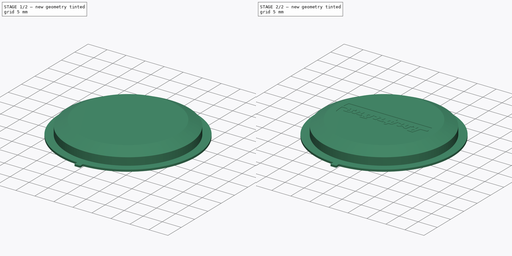
[diagram: build sequence overview — one tinted view per stage of 2, left to right]
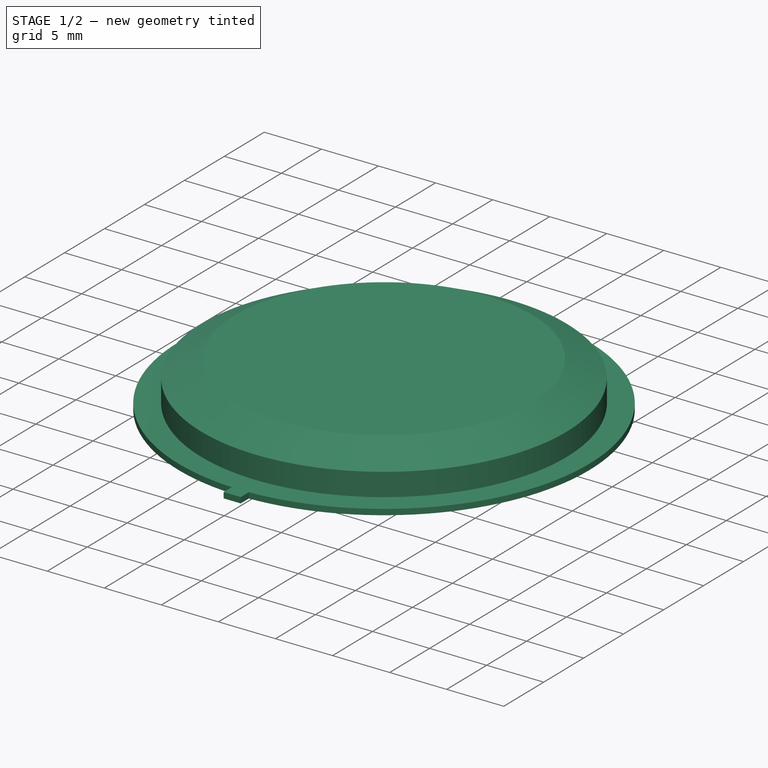
[diagram: stage 1 of 2 — iso view after this stage's code; geometry added in this stage tinted green]
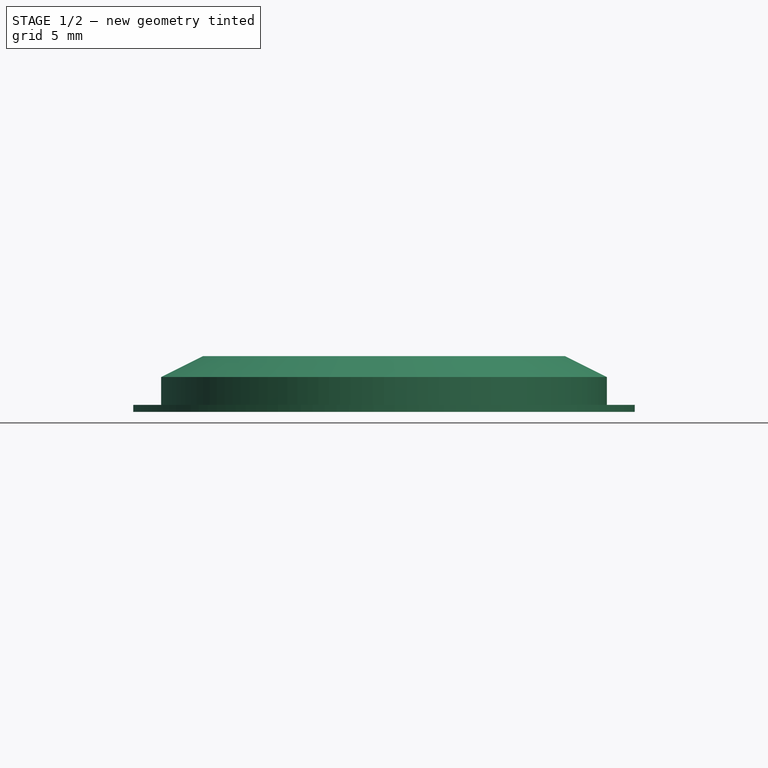
[diagram: stage 1 of 2 — front view after this stage's code; geometry added in this stage tinted green]
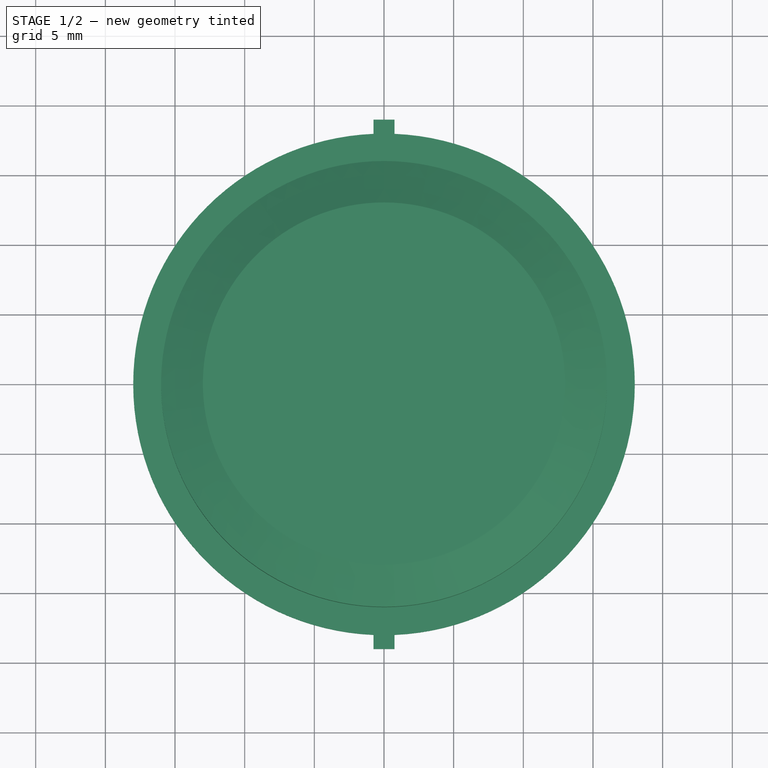
[diagram: stage 1 of 2 — top view after this stage's code; geometry added in this stage tinted green]
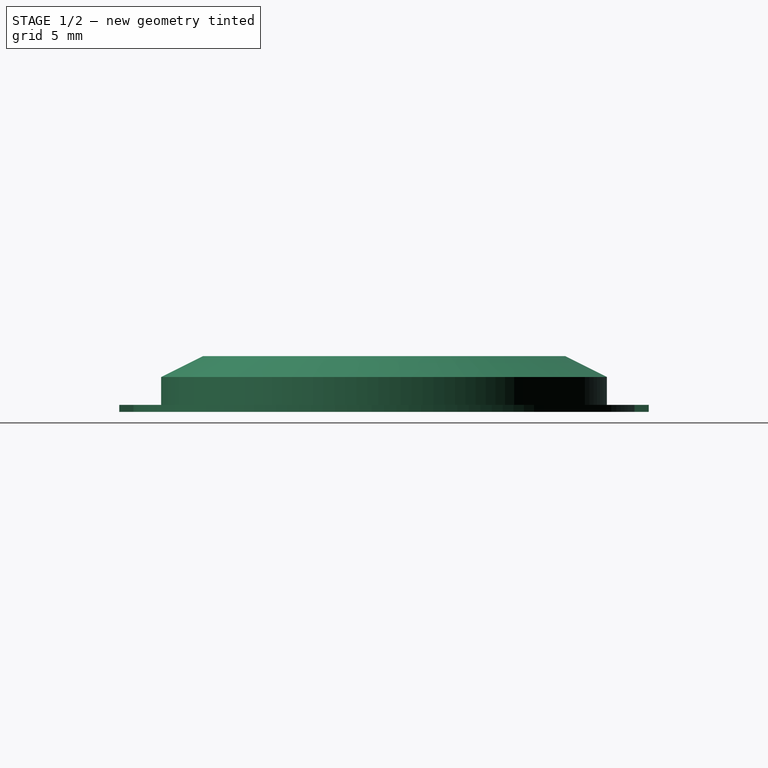
[diagram: stage 1 of 2 — right view after this stage's code; geometry added in this stage tinted green]
FCSTD DOCUMENT  (FreeCAD 0.19R20415 (Git))
Label: Vostok_Amphibia_Back
License: All rights reserved
LicenseURL: http://en.wikipedia.org/wiki/All_rights_reserved
objects: Sketcher::SketchObject×4, PartDesign::Pad×2, PartDesign::Revolution×1, Image::ImagePlane×1, PartDesign::Pocket×1, PartDesign::Body×1
note: 13 computed .brp shape members not serialized (recipe doc carries the construction recipe); baked Part::Feature solids carry a one-line shape summary decoded from their .brp

FEATURE [Sketcher::SketchObject] Sketch018
  MapMode = 5
  Placement = pos=(0,0,0) rot=(0.57735,0.57735,0.57735;2.0944rad)
  Support = -> [YZ_Plane002]
  sketch-geometry (10):
    g0: LineSegment StartX=0 StartY=3 StartZ=0 EndX=0 EndY=4 EndZ=0
    g1: LineSegment StartX=0 StartY=4 StartZ=0 EndX=13 EndY=4 EndZ=0
    g2: LineSegment StartX=13 StartY=4 StartZ=0 EndX=16 EndY=2.5 EndZ=0
    g3: LineSegment StartX=16 StartY=2.5 StartZ=0 EndX=16 EndY=0.5 EndZ=0
    g4: LineSegment StartX=16 StartY=0.5 StartZ=0 EndX=18 EndY=0.5 EndZ=0
    g5: LineSegment StartX=18 StartY=0.5 StartZ=0 EndX=18 EndY=0 EndZ=0
    g6: LineSegment StartX=18 StartY=0 StartZ=0 EndX=15 EndY=0 EndZ=0
    g7: LineSegment StartX=15 StartY=0 StartZ=0 EndX=15 EndY=2 EndZ=0
    g8: LineSegment StartX=15 StartY=2 StartZ=0 EndX=13 EndY=3 EndZ=0
    g9: LineSegment StartX=13 StartY=3 StartZ=0 EndX=0 EndY=3 EndZ=0
  constraints (30):
    c: PointOnObject(g0,g-2)
    c: Coincident(g0,g1)
    c: Horizontal(g1)
    c: Coincident(g1,g2)
    c: Coincident(g2,g3)
    c: Vertical(g3)
    c: Coincident(g3,g4)
    c: Horizontal(g4)
    c: Coincident(g4,g5)
    c: Coincident(g5,g6)
    c: Horizontal(g6)
    c: Coincident(g6,g7)
    c: Vertical(g7)
    c: Coincident(g7,g8)
    c: Coincident(g8,g9)
    c: Coincident(g9,g0)
    c: Horizontal(g9)
    c: Vertical(g5)
    c: Parallel(g8,g2)
    c: DistanceY(g5,g5) = 0.5
    c: DistanceY(g3,g3) = 2
    c: PointOnObject(g6,g-1)
    c: DistanceY(g1) = 4
    c: DistanceX(g2) = 16
    c: DistanceX(g1,g1) = 13
    c: Vertical(g0)
    c: DistanceY(g0,g0) = 1
    c: Vertical(g8,g1)
    c: DistanceX(g7,g3) = 1
    c: DistanceX(g4) = 18
FEATURE [PartDesign::Revolution] Revolution002
  AllowMultiFace = false
  Angle = 360
  Axis = (-2e-16,3e-16,1)
  Base = (0,0,0)
  Placement = pos=(0,0,0) rot=(0.57735,0.57735,0.57735;2.0944rad)
  Profile = -> Sketch018
  ReferenceAxis = -> Sketch018 [V_Axis]
  Reversed = true
FEATURE [Sketcher::SketchObject] Sketch019
  MapMode = 5
  Support = -> [XY_Plane002]
  sketch-geometry (8):
    g0: LineSegment StartX=-0.75 StartY=17.75 StartZ=0 EndX=0.75 EndY=17.75 EndZ=0
    g1: LineSegment StartX=0.75 StartY=17.75 StartZ=0 EndX=0.75 EndY=19 EndZ=0
    g2: LineSegment StartX=0.75 StartY=19 StartZ=0 EndX=-0.75 EndY=19 EndZ=0
    g3: LineSegment StartX=-0.75 StartY=19 StartZ=0 EndX=-0.75 EndY=17.75 EndZ=0
    g4: LineSegment StartX=-0.75 StartY=-17.75 StartZ=0 EndX=0.75 EndY=-17.75 EndZ=0
    g5: LineSegment StartX=0.75 StartY=-17.75 StartZ=0 EndX=0.75 EndY=-19 EndZ=0
    g6: LineSegment StartX=0.75 StartY=-19 StartZ=0 EndX=-0.75 EndY=-19 EndZ=0
    g7: LineSegment StartX=-0.75 StartY=-19 StartZ=0 EndX=-0.75 EndY=-17.75 EndZ=0
  constraints (22):
    c: Coincident(g0,g1)
    c: Coincident(g1,g2)
    c: Coincident(g2,g3)
    c: Coincident(g3,g0)
    c: Horizontal(g0)
    c: Vertical(g1)
    c: Vertical(g3)
    c: Coincident(g4,g5)
    c: Coincident(g5,g6)
    c: Coincident(g6,g7)
    c: Coincident(g7,g4)
    c: Horizontal(g4)
    c: Horizontal(g6)
    c: Vertical(g5)
    c: Vertical(g7)
    c: DistanceX(g2,g2) = 1.5
    c: DistanceY(g1,g1) = 1.25
    c: Symmetric(g2,g1,g-2)
    c: Equal(g3,g7)
    c: Equal(g6,g2)
    c: DistanceY(g0) = 17.75
    c: Symmetric(g4,g0,g-1)
FEATURE [PartDesign::Pad] Pad002
  AllowMultiFace = false
  BaseFeature = -> Revolution002
  Length = 0.5
  Length2 = 100
  Placement = pos=(0,0,0) rot=(0.57735,0.57735,0.57735;2.0944rad)
  Profile = -> Sketch019
  Refine = true
  Type = 0
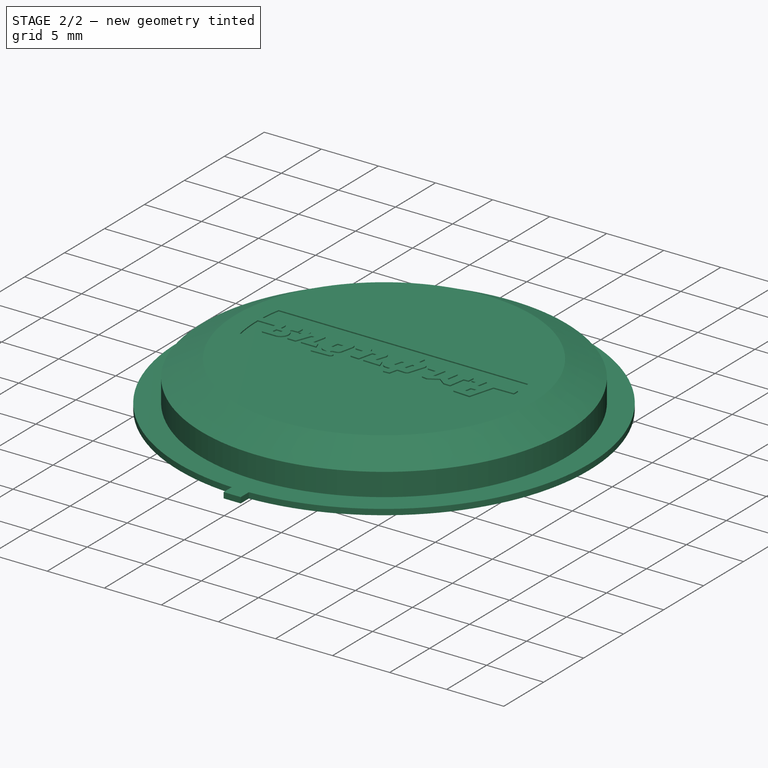
[diagram: stage 2 of 2 — iso view after this stage's code; geometry added in this stage tinted green]
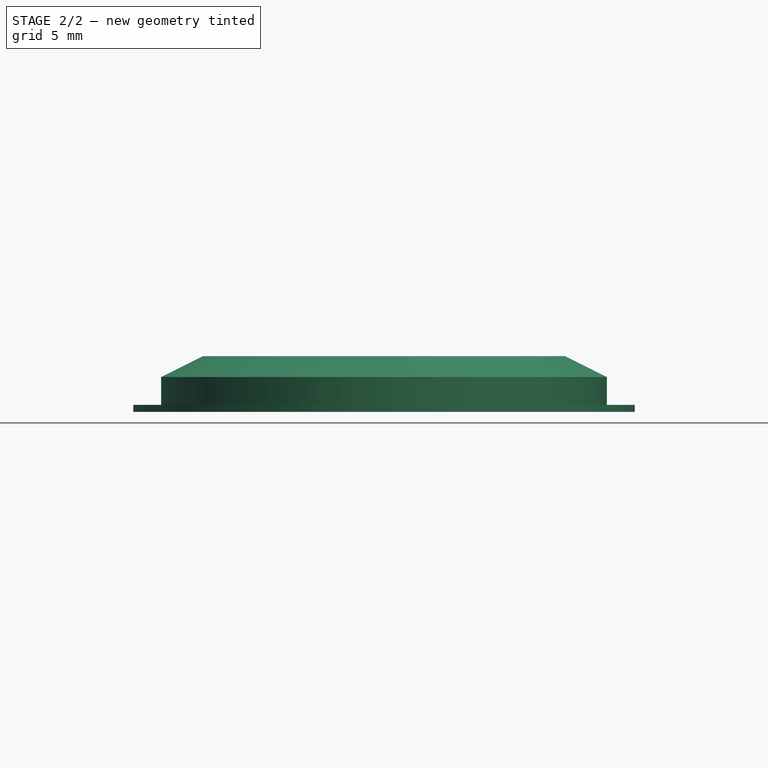
[diagram: stage 2 of 2 — front view after this stage's code; geometry added in this stage tinted green]
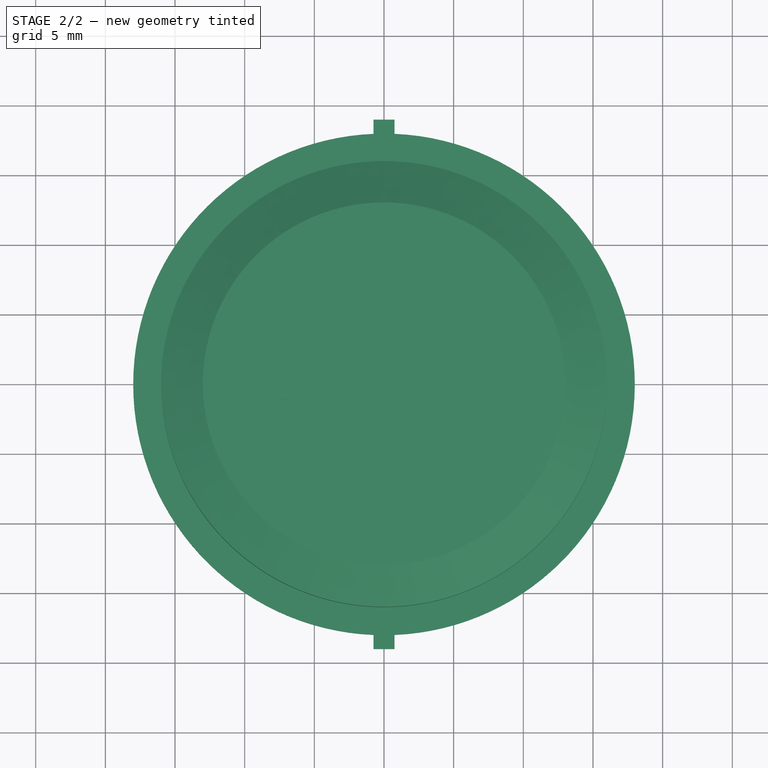
[diagram: stage 2 of 2 — top view after this stage's code; geometry added in this stage tinted green]
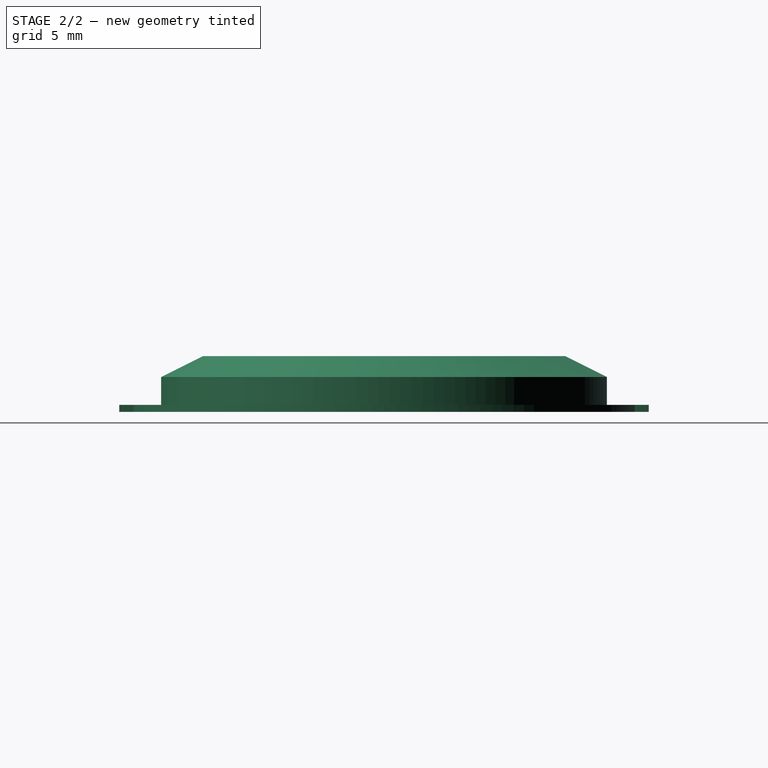
[diagram: stage 2 of 2 — right view after this stage's code; geometry added in this stage tinted green]
FEATURE [Image::ImagePlane] ImagePlane
  Placement = pos=(0,0,-4) rot=(-0.999391,0.034899,0;3.14159rad)
  XSize = 23.9034
  YSize = 6.97183
FEATURE [Sketcher::SketchObject] Sketch020
  MapMode = 5
  Placement = pos=(-1.8e-15,1.1e-15,4) rot=(0,0,-1;1.5708rad)
  Support = -> [Pad002]
  sketch-geometry (4):
    g0: LineSegment StartX=-2.43449 StartY=-10.9323 StartZ=0 EndX=-2.43449 EndY=10.9323 EndZ=0
    g1: LineSegment StartX=2.43449 StartY=-10.9323 StartZ=0 EndX=2.43449 EndY=10.9323 EndZ=0
    g2: ArcOfCircle CenterX=2.6e-15 CenterY=-2.66744 CenterZ=0 NormalX=0 NormalY=0 NormalZ=1 AngleXU=0 Radius=13.8159 StartAngle=1.39366 EndAngle=1.74793
    g3: ArcOfCircle CenterX=-2e-15 CenterY=1.2151 CenterZ=0 NormalX=0 NormalY=0 NormalZ=1 AngleXU=0 Radius=12.3889 StartAngle=4.5146 EndAngle=4.91018
  constraints (7):
    c: Coincident(g2,g0)
    c: Coincident(g2,g1)
    c: Coincident(g3,g0)
    c: Coincident(g3,g1)
    c: Symmetric(g1,g1,g-1)
    c: Symmetric(g0,g1,g-2)
    c: Symmetric(g0,g1,g-2)
FEATURE [PartDesign::Pocket] Pocket
  AllowMultiFace = false
  BaseFeature = -> Pad002
  Length = 0.1
  Length2 = 100
  Placement = pos=(0,0,0) rot=(0.57735,0.57735,0.57735;2.0944rad)
  Profile = -> Sketch020
  Type = 0
FEATURE [Sketcher::SketchObject] Sketch021
  MapMode = 5
  Placement = pos=(-1.7e-15,9e-16,3.9) rot=(0,0,-1;1.5708rad)
  Support = -> [Pocket]
  sketch-geometry (128):
    g0: LineSegment StartX=-1.05109 StartY=11.0024 StartZ=0 EndX=-0.972425 EndY=8.86941 EndZ=0
    g1: LineSegment StartX=-0.972425 StartY=8.86941 StartZ=0 EndX=-0.10063 EndY=8.66748 EndZ=0
    g2: LineSegment StartX=-0.10063 StartY=8.66748 StartZ=0 EndX=-0.120028 EndY=8.12436 EndZ=0
    g3: LineSegment StartX=-0.120028 StartY=8.12436 StartZ=0 EndX=-1.0127 EndY=8.30808 EndZ=0
    g4: LineSegment StartX=-1.0127 StartY=8.30808 StartZ=0 EndX=-1.0127 EndY=7.40667 EndZ=0
    g5: LineSegment StartX=-1.0127 StartY=7.40667 StartZ=0 EndX=-0.525367 EndY=7.29347 EndZ=0
    g6: LineSegment StartX=-0.525367 StartY=7.29347 StartZ=0 EndX=-0.530311 EndY=7.66981 EndZ=0
    g7: LineSegment StartX=-0.530311 StartY=7.66981 StartZ=0 EndX=1.57017 EndY=7.18173 EndZ=0
    g8: LineSegment StartX=1.57017 StartY=7.18173 StartZ=0 EndX=1.65732 EndY=8.64597 EndZ=0
    g9: LineSegment StartX=1.65732 StartY=8.64597 StartZ=0 EndX=-0.50107 EndY=9.24489 EndZ=0
    g10: LineSegment StartX=-0.50107 StartY=9.24489 StartZ=0 EndX=-0.538989 EndY=11.0024 EndZ=0
    g11: LineSegment StartX=0.481582 StartY=8.438 StartZ=0 EndX=0.513538 EndY=7.96665 EndZ=0
    g12: LineSegment StartX=0.513538 StartY=7.96665 StartZ=0 EndX=1.08875 EndY=7.86279 EndZ=0
    g13: LineSegment StartX=1.08875 StartY=7.86279 StartZ=0 EndX=1.06419 EndY=8.33585 EndZ=0
    g14: LineSegment StartX=1.06419 StartY=8.33585 StartZ=0 EndX=0.481582 EndY=8.438 EndZ=0
    g15: LineSegment StartX=-1.00457 StartY=7.15492 StartZ=0 EndX=-0.988205 EndY=6.24478 EndZ=0
    g16: LineSegment StartX=-0.988205 StartY=6.24478 StartZ=0 EndX=0.36954 EndY=6.02047 EndZ=0
    g17: LineSegment StartX=0.36954 StartY=6.02047 StartZ=0 EndX=0.144834 EndY=5.67826 EndZ=0
    g18: LineSegment StartX=0.144834 StartY=5.67826 StartZ=0 EndX=-0.85747 EndY=5.86129 EndZ=0
    g19: LineSegment StartX=-0.85747 StartY=5.86129 StartZ=0 EndX=-0.8847 EndY=5.33103 EndZ=0
    g20: LineSegment StartX=-0.8847 StartY=5.33103 StartZ=0 EndX=0.048961 EndY=5.17275 EndZ=0
    g21: LineSegment StartX=0.048961 StartY=5.17275 StartZ=0 EndX=0.353603 EndY=4.54011 EndZ=0
    g22: LineSegment StartX=0.353603 StartY=4.54011 StartZ=0 EndX=-0.840038 EndY=4.78926 EndZ=0
    g23: LineSegment StartX=-0.840038 StartY=4.78926 StartZ=0 EndX=-0.940623 EndY=3.31779 EndZ=0
    g24: LineSegment StartX=-0.940623 StartY=3.31779 StartZ=0 EndX=-0.456548 EndY=3.51677 EndZ=0
    g25: LineSegment StartX=-0.456548 StartY=3.51677 StartZ=0 EndX=-0.429325 EndY=4.22854 EndZ=0
    g26: LineSegment StartX=-0.429325 StartY=4.22854 StartZ=0 EndX=0.885667 EndY=3.94384 EndZ=0
    g27: LineSegment StartX=0.885667 StartY=3.94384 StartZ=0 EndX=0.952781 EndY=4.41228 EndZ=0
    g28: LineSegment StartX=0.952781 StartY=4.41228 StartZ=0 EndX=0.476029 EndY=5.25119 EndZ=0
    g29: LineSegment StartX=0.476029 StartY=5.25119 StartZ=0 EndX=0.944792 EndY=5.88227 EndZ=0
    g30: LineSegment StartX=0.944792 StartY=5.88227 StartZ=0 EndX=0.955392 EndY=6.46267 EndZ=0
    g31: LineSegment StartX=0.955392 StartY=6.46267 StartZ=0 EndX=-0.413346 EndY=6.69715 EndZ=0
    g32: LineSegment StartX=-0.413346 StartY=6.69715 StartZ=0 EndX=-0.439117 EndY=7.10763 EndZ=0
    g33: LineSegment StartX=-0.439117 StartY=7.10763 StartZ=0 EndX=-1.00457 EndY=7.15492 EndZ=0
    g34: LineSegment StartX=-1.59533 StartY=2.46341 StartZ=0 EndX=-1.66723 EndY=1.91217 EndZ=0
    g35: LineSegment StartX=-1.66723 StartY=1.91217 StartZ=0 EndX=-0.98497 EndY=1.7539 EndZ=0
    g36: LineSegment StartX=-0.98497 StartY=1.7539 StartZ=0 EndX=-0.996148 EndY=1.09729 EndZ=0
    g37: ArcOfCircle CenterX=-0.677645 CenterY=1.09187 CenterZ=0 NormalX=0 NormalY=0 NormalZ=1 AngleXU=0 Radius=0.318549 StartAngle=3.12457 EndAngle=4.6659
    g38: LineSegment StartX=-1.59533 StartY=2.46341 StartZ=0 EndX=-0.98581 EndY=2.38212 EndZ=0
    g39: LineSegment StartX=-0.98581 StartY=2.38212 StartZ=0 EndX=-0.976837 EndY=2.86063 EndZ=0
    g40: ArcOfCircle CenterX=-0.62013 CenterY=2.85394 CenterZ=0 NormalX=0 NormalY=0 NormalZ=1 AngleXU=0 Radius=0.35677 StartAngle=1.2565 EndAngle=3.12284
    g41: LineSegment StartX=-0.509837 StartY=3.19323 StartZ=0 EndX=0.801388 EndY=2.767 EndZ=0
    g42: ArcOfCircle CenterX=0.718111 CenterY=2.51081 CenterZ=0 NormalX=0 NormalY=0 NormalZ=1 AngleXU=0 Radius=0.26938 StartAngle=6.24926 EndAngle=7.53969
    g43: LineSegment StartX=0.987336 StartY=2.50168 StartZ=0 EndX=0.964921 EndY=1.84113 EndZ=0
    g44: LineSegment StartX=0.964921 StartY=1.84113 StartZ=0 EndX=1.69616 EndY=1.65652 EndZ=0
    g45: LineSegment StartX=1.69616 StartY=1.65652 StartZ=0 EndX=1.72812 EndY=1.12125 EndZ=0
    g46: LineSegment StartX=1.72812 StartY=1.12125 StartZ=0 EndX=1.03579 EndY=1.25781 EndZ=0
    g47: LineSegment StartX=1.03579 StartY=1.25781 StartZ=0 EndX=1.01749 EndY=0.836872 EndZ=0
    g48: ArcOfCircle CenterX=0.607464 CenterY=0.854702 CenterZ=0 NormalX=0 NormalY=0 NormalZ=1 AngleXU=0 Radius=0.410412 StartAngle=4.45408 EndAngle=6.23973
    g49: LineSegment StartX=0.502626 StartY=0.457906 StartZ=0 EndX=-0.692449 EndY=0.773661 EndZ=0
    g50: LineSegment StartX=-0.285122 StartY=2.47939 StartZ=0 EndX=-0.344921 EndY=2.25341 EndZ=0
    g51: LineSegment StartX=-0.344921 StartY=2.25341 StartZ=0 EndX=0.354001 EndY=2.05597 EndZ=0
    g52: LineSegment StartX=0.354001 StartY=2.05597 StartZ=0 EndX=0.39705 EndY=2.30015 EndZ=0
    g53: LineSegment StartX=0.39705 StartY=2.30015 StartZ=0 EndX=-0.285122 EndY=2.47939 EndZ=0
    g54: LineSegment StartX=-0.341045 StartY=1.54468 StartZ=0 EndX=-0.339079 EndY=1.3128 EndZ=0
    g55: LineSegment StartX=-0.339079 StartY=1.3128 StartZ=0 EndX=0.361991 EndY=1.12924 EndZ=0
    g56: LineSegment StartX=0.361991 StartY=1.12924 StartZ=0 EndX=0.393947 EndY=1.40087 EndZ=0
    g57: LineSegment StartX=0.393947 StartY=1.40087 StartZ=0 EndX=-0.341045 EndY=1.54468 EndZ=0
    g58: LineSegment StartX=-0.373136 StartY=-0.145754 StartZ=0 EndX=0.474852 EndY=-0.431454 EndZ=0
    g59: LineSegment StartX=0.474852 StartY=-0.431454 StartZ=0 EndX=0.466107 EndY=0.169897 EndZ=0
    g60: LineSegment StartX=0.466107 StartY=0.169897 StartZ=0 EndX=1.04891 EndY=0.365545 EndZ=0
    g61: LineSegment StartX=1.04891 StartY=0.365545 StartZ=0 EndX=1.00743 EndY=-1.11798 EndZ=0
    g62: LineSegment StartX=1.00743 StartY=-1.11798 StartZ=0 EndX=-0.293246 EndY=-0.872757 EndZ=0
    g63: LineSegment StartX=-0.293246 StartY=-0.872757 StartZ=0 EndX=-0.299928 EndY=-1.22257 EndZ=0
    g64: LineSegment StartX=-0.299928 StartY=-1.22257 StartZ=0 EndX=0.985002 EndY=-1.52786 EndZ=0
    g65: LineSegment StartX=0.985002 StartY=-1.52786 StartZ=0 EndX=0.945056 EndY=-2.27084 EndZ=0
    g66: LineSegment StartX=0.945056 StartY=-2.27084 StartZ=0 EndX=-0.256349 EndY=-2.02441 EndZ=0
    g67: LineSegment StartX=-0.256349 StartY=-2.02441 StartZ=0 EndX=-0.285257 EndY=-2.69426 EndZ=0
    g68: LineSegment StartX=-0.285257 StartY=-2.69426 StartZ=0 EndX=-0.876366 EndY=-2.94468 EndZ=0
    g69: LineSegment StartX=-0.876366 StartY=-2.94468 StartZ=0 EndX=-0.84449 EndY=-1.64769 EndZ=0
    g70: LineSegment StartX=-0.84449 StartY=-1.64769 StartZ=0 EndX=-0.482957 EndY=-1.51019 EndZ=0
    g71: LineSegment StartX=-0.482957 StartY=-1.51019 StartZ=0 EndX=-0.903417 EndY=-1.39217 EndZ=0
    g72: LineSegment StartX=-0.903417 StartY=-1.39217 StartZ=0 EndX=-0.873512 EndY=-0.459889 EndZ=0
    g73: ArcOfCircle CenterX=-0.517548 CenterY=-0.471308 CenterZ=0 NormalX=0 NormalY=0 NormalZ=1 AngleXU=0 Radius=0.356146 StartAngle=1.15329 EndAngle=3.10953
    g74: LineSegment StartX=-0.836017 StartY=-3.28291 StartZ=0 EndX=-0.876294 EndY=-4.15794 EndZ=0
    g75: ArcOfCircle CenterX=-0.396233 CenterY=-4.18003 CenterZ=0 NormalX=0 NormalY=0 NormalZ=1 AngleXU=0 Radius=0.480569 StartAngle=3.0956 EndAngle=4.53392
    g76: LineSegment StartX=-0.481546 StartY=-4.65297 StartZ=0 EndX=0.600982 EndY=-4.84825 EndZ=0
    g77: ArcOfCircle CenterX=0.695517 CenterY=-4.32419 CenterZ=0 NormalX=0 NormalY=0 NormalZ=1 AngleXU=0 Radius=0.532517 StartAngle=4.53392 EndAngle=6.01313
    g78: LineSegment StartX=-0.263959 StartY=-2.99421 StartZ=0 EndX=0.709587 EndY=-3.21573 EndZ=0
    g79: ArcOfCircle CenterX=0.631814 CenterY=-3.55753 CenterZ=0 NormalX=0 NormalY=0 NormalZ=1 AngleXU=0 Radius=0.350534 StartAngle=0.17182 EndAngle=1.34707
    g80: LineSegment StartX=0.977187 StartY=-3.4976 StartZ=0 EndX=1.02635 EndY=-3.7809 EndZ=0
    g81: ArcOfCircle CenterX=1.14722 CenterY=-3.75992 CenterZ=0 NormalX=0 NormalY=0 NormalZ=1 AngleXU=0 Radius=0.122677 StartAngle=3.31341 EndAngle=6.03351
    g82: LineSegment StartX=1.26609 StartY=-3.79024 StartZ=0 EndX=1.32563 EndY=-3.55675 EndZ=0
    g83: ArcOfCircle CenterX=1.53837 CenterY=-3.611 CenterZ=0 NormalX=0 NormalY=0 NormalZ=1 AngleXU=0 Radius=0.219545 StartAngle=0.0453612 EndAngle=2.89192
    g84: LineSegment StartX=1.75769 StartY=-3.60104 StartZ=0 EndX=1.82756 EndY=-5.14041 EndZ=0
    g85: LineSegment StartX=1.82756 StartY=-5.14041 StartZ=0 EndX=1.37768 EndY=-5.11414 EndZ=0
    g86: LineSegment StartX=1.37768 StartY=-5.11414 StartZ=0 EndX=1.3287 EndY=-4.03286 EndZ=0
    g87: LineSegment StartX=1.3287 StartY=-4.03286 StartZ=0 EndX=1.20873 EndY=-4.46626 EndZ=0
    g88: LineSegment StartX=-0.179772 StartY=-3.68732 StartZ=0 EndX=-0.189214 EndY=-4.18465 EndZ=0
    g89: LineSegment StartX=-0.189214 StartY=-4.18465 StartZ=0 EndX=0.456341 EndY=-4.28579 EndZ=0
    g90: LineSegment StartX=0.456341 StartY=-4.28579 StartZ=0 EndX=0.497845 EndY=-3.82515 EndZ=0
    g91: LineSegment StartX=0.497845 StartY=-3.82515 StartZ=0 EndX=-0.179772 EndY=-3.68732 EndZ=0
    g92: ArcOfCircle CenterX=-0.404687 CenterY=-3.42648 CenterZ=0 NormalX=0 NormalY=0 NormalZ=1 AngleXU=0 Radius=0.454596 StartAngle=1.25606 EndAngle=2.82028
    g93: LineSegment StartX=-0.468422 StartY=-5.55288 StartZ=0 EndX=0.594216 EndY=-5.78783 EndZ=0
    g94: LineSegment StartX=0.594216 StartY=-5.78783 StartZ=0 EndX=0.594216 EndY=-5.3551 EndZ=0
    g95: LineSegment StartX=0.594216 StartY=-5.3551 StartZ=0 EndX=1.08155 EndY=-5.18067 EndZ=0
    g96: LineSegment StartX=1.08155 StartY=-5.18067 StartZ=0 EndX=1.08155 EndY=-6.52283 EndZ=0
    g97: LineSegment StartX=1.08155 StartY=-6.52283 StartZ=0 EndX=-0.195384 EndY=-6.23538 EndZ=0
    g98: LineSegment StartX=-0.195384 StartY=-6.23538 StartZ=0 EndX=-0.195384 EndY=-6.48814 EndZ=0
    g99: LineSegment StartX=-0.195384 StartY=-6.48814 StartZ=0 EndX=1.10552 EndY=-6.9782 EndZ=0
    g100: LineSegment StartX=1.10552 StartY=-6.9782 StartZ=0 EndX=1.10552 EndY=-7.68923 EndZ=0
    g101: LineSegment StartX=1.10552 StartY=-7.68923 StartZ=0 EndX=-0.14309 EndY=-7.32484 EndZ=0
    g102: LineSegment StartX=-0.14309 StartY=-7.32484 StartZ=0 EndX=-0.169237 EndY=-7.59503 EndZ=0
    g103: LineSegment StartX=-0.169237 StartY=-7.59503 StartZ=0 EndX=-0.770619 EndY=-7.47301 EndZ=0
    g104: LineSegment StartX=-0.770619 StartY=-7.47301 StartZ=0 EndX=-0.652075 EndY=-6.85837 EndZ=0
    g105: LineSegment StartX=-0.652075 StartY=-6.85837 StartZ=0 EndX=-0.317403 EndY=-6.85837 EndZ=0
    g106: LineSegment StartX=-0.317403 StartY=-6.85837 StartZ=0 EndX=-0.787888 EndY=-6.65864 EndZ=0
    g107: LineSegment StartX=-0.787888 StartY=-6.65864 StartZ=0 EndX=-0.787888 EndY=-5.81401 EndZ=0
    g108: ArcOfCircle CenterX=-0.521438 CenterY=-5.81401 CenterZ=0 NormalX=0 NormalY=0 NormalZ=1 AngleXU=0 Radius=0.26645 StartAngle=1.37049 EndAngle=3.14159
    g109: LineSegment StartX=-0.788226 StartY=-7.66709 StartZ=0 EndX=-0.744648 EndY=-8.47765 EndZ=0
    g110: LineSegment StartX=-0.744648 StartY=-8.47765 StartZ=0 EndX=0.013617 EndY=-8.64325 EndZ=0
    g111: LineSegment StartX=0.013617 StartY=-8.64325 StartZ=0 EndX=-0.0298878 EndY=-9.06036 EndZ=0
    g112: LineSegment StartX=-0.0298878 StartY=-9.06036 StartZ=0 EndX=-0.485137 EndY=-9.03212 EndZ=0
    g113: ArcOfCircle CenterX=-0.501336 CenterY=-9.29326 CenterZ=0 NormalX=0 NormalY=0 NormalZ=1 AngleXU=0 Radius=0.261643 StartAngle=1.50884 EndAngle=3.16457
    g114: LineSegment StartX=-0.76291 StartY=-9.29927 StartZ=0 EndX=-0.718502 EndY=-11.2317 EndZ=0
    g115: LineSegment StartX=-0.165053 StartY=-11.2317 StartZ=0 EndX=-0.165053 EndY=-9.65233 EndZ=0
    g116: LineSegment StartX=-0.165053 StartY=-9.65233 StartZ=0 EndX=1.20326 EndY=-9.85734 EndZ=0
    g117: LineSegment StartX=1.20326 StartY=-9.85734 StartZ=0 EndX=1.20326 EndY=-8.68837 EndZ=0
    g118: ArcOfCircle CenterX=0.503263 CenterY=-8.68837 CenterZ=0 NormalX=0 NormalY=0 NormalZ=1 AngleXU=0 Radius=0.7 StartAngle=3e-16 EndAngle=2.42421
    g119: ArcOfCircle CenterX=-0.0995607 CenterY=-8.16244 CenterZ=0 NormalX=0 NormalY=0 NormalZ=1 AngleXU=0 Radius=0.1 StartAngle=3.19108 EndAngle=5.5658
    g120: LineSegment StartX=-0.199438 StartY=-8.16738 StartZ=0 EndX=-0.223065 EndY=-7.69038 EndZ=0
    g121: LineSegment StartX=-0.223065 StartY=-7.69038 StartZ=0 EndX=-0.788226 EndY=-7.66709 EndZ=0
    g122: LineSegment StartX=0.322334 StartY=-8.65841 StartZ=0 EndX=0.322334 EndY=-9.19368 EndZ=0
    g123: LineSegment StartX=0.322334 StartY=-9.19368 StartZ=0 EndX=0.753406 EndY=-9.23806 EndZ=0
    g124: LineSegment StartX=0.753406 StartY=-9.23806 StartZ=0 EndX=0.77771 EndY=-8.65841 EndZ=0
    g125: LineSegment StartX=0.77771 StartY=-8.65841 StartZ=0 EndX=0.322334 EndY=-8.65841 EndZ=0
    g126: LineSegment StartX=-0.718502 StartY=-11.2317 StartZ=0 EndX=-0.165053 EndY=-11.2317 EndZ=0
    g127: LineSegment StartX=-1.05109 StartY=11.0024 StartZ=0 EndX=-0.538989 EndY=11.0024 EndZ=0
  constraints (141):
    c: Coincident(g0,g1)
    c: Coincident(g1,g2)
    c: Coincident(g2,g3)
    c: Coincident(g3,g4)
    c: Vertical(g4)
    c: Coincident(g4,g5)
    c: Coincident(g6,g7)
    c: Coincident(g7,g8)
    c: Coincident(g8,g9)
    c: Coincident(g9,g10)
    c: Coincident(g11,g12)
    c: Coincident(g12,g13)
    c: Coincident(g13,g14)
    c: Coincident(g14,g11)
    c: Coincident(g15,g16)
    c: Coincident(g16,g17)
    c: Coincident(g17,g18)
    c: Coincident(g18,g19)
    c: Coincident(g19,g20)
    c: Coincident(g20,g21)
    c: Coincident(g21,g22)
    c: Coincident(g22,g23)
    c: Coincident(g23,g24)
    c: Coincident(g24,g25)
    c: Coincident(g25,g26)
    c: Coincident(g26,g27)
    c: Coincident(g27,g28)
    c: Coincident(g28,g29)
    c: Coincident(g29,g30)
    c: Coincident(g30,g31)
    c: Coincident(g31,g32)
    c: Coincident(g32,g33)
    c: Coincident(g33,g15)
    c: Coincident(g34,g35)
    c: Coincident(g35,g36)
    c: Tangent(g36,g37) = -1.5708
    c: Coincident(g38,g39)
    c: Tangent(g39,g40) = 1.5708
    c: Tangent(g40,g41) = 1.5708
    c: Tangent(g41,g42) = 1.5708
    c: Tangent(g42,g43) = 1.5708
    c: Coincident(g43,g44)
    c: Coincident(g44,g45)
    c: Coincident(g45,g46)
    c: Coincident(g46,g47)
    c: Tangent(g47,g48) = 1.5708
    c: Tangent(g48,g49) = 1.5708
    c: Coincident(g37,g49)
    c: Coincident(g50,g51)
    c: Coincident(g51,g52)
    c: Coincident(g52,g53)
    c: Coincident(g53,g50)
    c: Coincident(g54,g55)
    c: Coincident(g55,g56)
    c: Coincident(g56,g57)
    c: Coincident(g57,g54)
    c: Coincident(g58,g59)
    c: Coincident(g60,g61)
    c: Coincident(g61,g62)
    c: Coincident(g62,g63)
    c: Coincident(g63,g64)
    c: Coincident(g64,g65)
    c: Coincident(g65,g66)
    c: Coincident(g66,g67)
    c: Coincident(g67,g68)
    c: Coincident(g68,g69)
    c: Coincident(g69,g70)
    c: Coincident(g70,g71)
    c: Coincident(g71,g72)
    c: Tangent(g72,g73) = 1.5708
    c: Coincident(g58,g73)
    c: Tangent(g74,g75) = -1.5708
    c: Tangent(g75,g76) = -1.5708
    c: Tangent(g76,g77) = -1.5708
    c: Tangent(g78,g79) = 1.5708
    c: Tangent(g79,g80) = 1.5708
    c: Tangent(g80,g81) = -1.5708
    c: Tangent(g81,g82) = -1.5708
    c: Tangent(g82,g83) = 1.5708
    c: Tangent(g83,g84) = 1.5708
    c: Coincident(g84,g85)
    c: Coincident(g85,g86)
    c: Tangent(g77,g87) = 1.5708
    c: Coincident(g86,g87)
    c: Coincident(g88,g89)
    c: Coincident(g89,g90)
    c: Coincident(g90,g91)
    c: Coincident(g91,g88)
    c: Coincident(g92,g78)
    c: Coincident(g74,g92)
    c: Coincident(g60,g59)
    c: Coincident(g93,g94)
    c: Vertical(g94)
    c: Coincident(g94,g95)
    c: Coincident(g95,g96)
    c: Vertical(g96)
    c: Coincident(g96,g97)
    c: Coincident(g97,g98)
    c: Vertical(g98)
    c: Coincident(g98,g99)
    c: Coincident(g99,g100)
    c: Vertical(g100)
    c: Coincident(g100,g101)
    c: Coincident(g101,g102)
    c: Coincident(g102,g103)
    c: Coincident(g103,g104)
    c: Coincident(g104,g105)
    c: Horizontal(g105)
    c: Coincident(g105,g106)
    c: Coincident(g106,g107)
    c: Vertical(g107)
    c: Tangent(g107,g108) = 1.5708
    c: Coincident(g108,g93)
    c: Coincident(g109,g110)
    c: Coincident(g110,g111)
    c: Coincident(g111,g112)
    c: Tangent(g112,g113) = -1.5708
    c: Tangent(g113,g114) = -1.5708
    c: Vertical(g115)
    c: Coincident(g115,g116)
    c: Coincident(g116,g117)
    c: Vertical(g117)
    c: Tangent(g117,g118) = -1.5708
    c: Tangent(g118,g119) = 1.5708
    c: Tangent(g119,g120) = 1.5708
    c: Coincident(g120,g121)
    c: Coincident(g121,g109)
    c: Vertical(g122)
    c: Coincident(g122,g123)
    c: Coincident(g123,g124)
    c: Coincident(g124,g125)
    c: Coincident(g125,g122)
    c: Horizontal(g125)
    c: Coincident(g5,g6)
    c: Coincident(g34,g38)
    c: Coincident(g126,g114)
    c: Coincident(g126,g115)
    c: Horizontal(g126)
    c: Coincident(g127,g0)
    c: Coincident(g127,g10)
    c: Horizontal(g127)
FEATURE [PartDesign::Pad] Pad
  AllowMultiFace = false
  BaseFeature = -> Pocket
  Length = 0.1
  Length2 = 100
  Placement = pos=(0,0,0) rot=(0.57735,0.57735,0.57735;2.0944rad)
  Profile = -> Sketch021
  Type = 0
FEATURE [PartDesign::Body] Body002  label="Back"
  Group = -> [Sketch018,Revolution002,Sketch019,Pad002,Sketch020,Pocket,Sketch021,Pad]
  Origin = -> Origin002
  Placement = pos=(-1e-15,0,0) rot=(0,1,0;3.14159rad)
  Tip = -> Pad
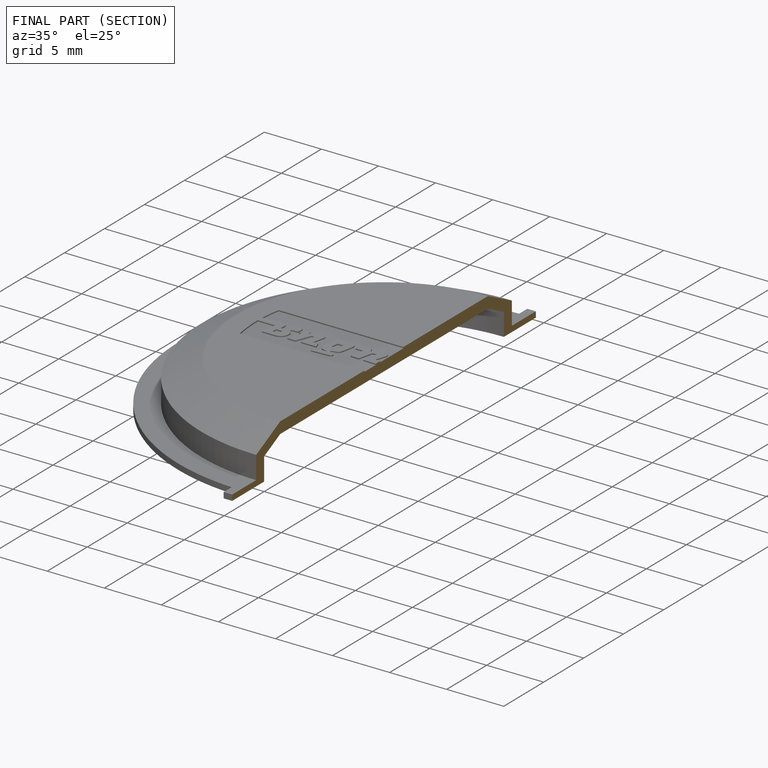
[diagram: finished part — half-section view (interior)]
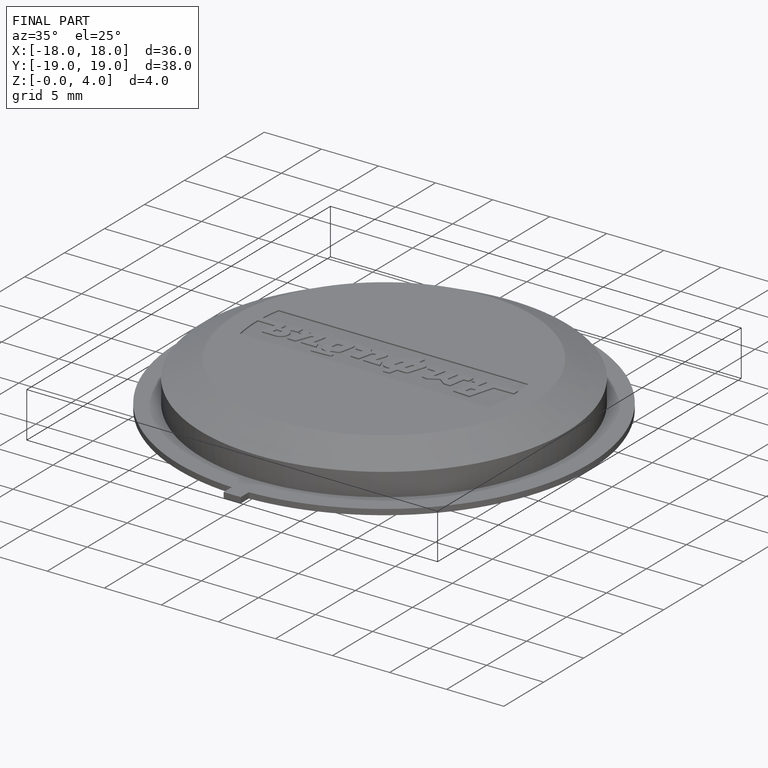
[diagram: finished part — iso view with bounding-box wireframe]
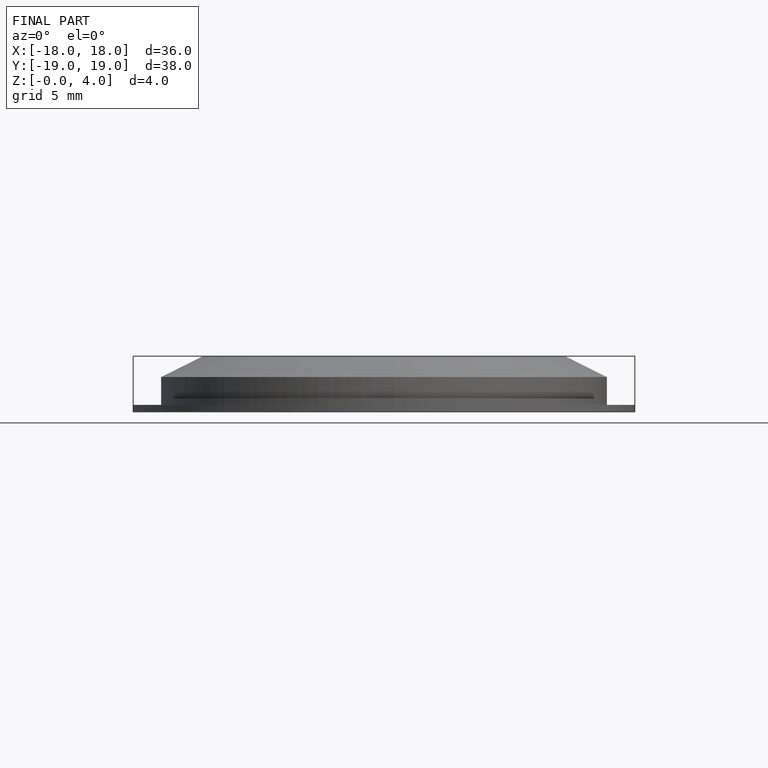
[diagram: finished part — front view with bounding-box wireframe]
